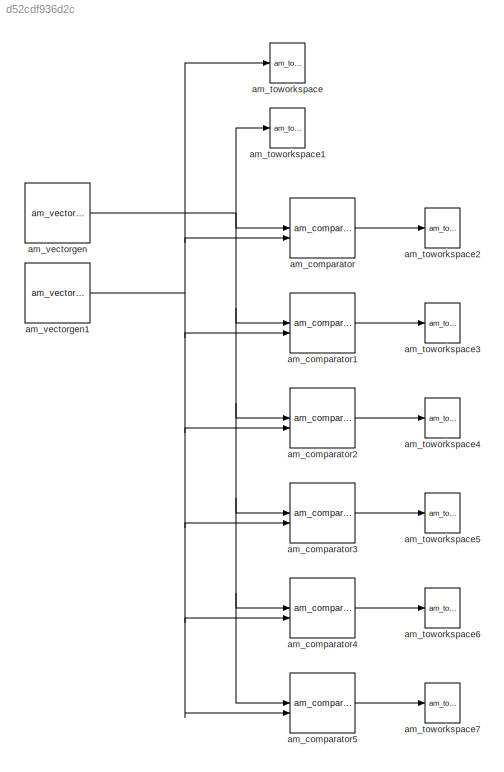
MODEL slx_d52cdf936d2c
KIND model
CONFIG AbsTol = auto
CONFIG EnableMultiTasking = off
CONFIG FixedStep = auto
CONFIG MaxStep = auto
CONFIG MinStep = auto
CONFIG RelTol = 1e-3
CONFIG SampleTimeConstraint = Unconstrained
CONFIG SolverName = VariableStepAuto
CONFIG StartTime = 0.0
CONFIG StopTime = 10.0
BLOCK [Reference] am_comparator  REF=NSA_DEVS_MATH_OPERATIONS/am_comparator
  SourceBlock = NSA_DEVS_MATH_OPERATIONS/am_comparator
  SourceProductName = Math Operations
  SourceType = Comparator
BLOCK [Reference] am_comparator1  REF=NSA_DEVS_MATH_OPERATIONS/am_comparator
  SourceBlock = NSA_DEVS_MATH_OPERATIONS/am_comparator
  SourceProductName = Math Operations
  SourceType = Comparator
BLOCK [Reference] am_comparator2  REF=NSA_DEVS_MATH_OPERATIONS/am_comparator
  SourceBlock = NSA_DEVS_MATH_OPERATIONS/am_comparator
  SourceProductName = Math Operations
  SourceType = Comparator
BLOCK [Reference] am_comparator3  REF=NSA_DEVS_MATH_OPERATIONS/am_comparator
  SourceBlock = NSA_DEVS_MATH_OPERATIONS/am_comparator
  SourceProductName = Math Operations
  SourceType = Comparator
BLOCK [Reference] am_comparator4  REF=NSA_DEVS_MATH_OPERATIONS/am_comparator
  SourceBlock = NSA_DEVS_MATH_OPERATIONS/am_comparator
  SourceProductName = Math Operations
  SourceType = Comparator
BLOCK [Reference] am_comparator5  REF=NSA_DEVS_MATH_OPERATIONS/am_comparator
  SourceBlock = NSA_DEVS_MATH_OPERATIONS/am_comparator
  SourceProductName = Math Operations
  SourceType = Comparator
BLOCK [Reference] am_toworkspace  REF=NSA_DEVS_SINKS/am_toworkspace
  SourceBlock = NSA_DEVS_SINKS/am_toworkspace
  SourceProductName = Sinks
  SourceType = ToWorkspace
BLOCK [Reference] am_toworkspace1  REF=NSA_DEVS_SINKS/am_toworkspace
  SourceBlock = NSA_DEVS_SINKS/am_toworkspace
  SourceProductName = Sinks
  SourceType = ToWorkspace
BLOCK [Reference] am_toworkspace2  REF=NSA_DEVS_SINKS/am_toworkspace
  SourceBlock = NSA_DEVS_SINKS/am_toworkspace
  SourceProductName = Sinks
  SourceType = ToWorkspace
BLOCK [Reference] am_toworkspace3  REF=NSA_DEVS_SINKS/am_toworkspace
  SourceBlock = NSA_DEVS_SINKS/am_toworkspace
  SourceProductName = Sinks
  SourceType = ToWorkspace
BLOCK [Reference] am_toworkspace4  REF=NSA_DEVS_SINKS/am_toworkspace
  SourceBlock = NSA_DEVS_SINKS/am_toworkspace
  SourceProductName = Sinks
  SourceType = ToWorkspace
BLOCK [Reference] am_toworkspace5  REF=NSA_DEVS_SINKS/am_toworkspace
  SourceBlock = NSA_DEVS_SINKS/am_toworkspace
  SourceProductName = Sinks
  SourceType = ToWorkspace
BLOCK [Reference] am_toworkspace6  REF=NSA_DEVS_SINKS/am_toworkspace
  SourceBlock = NSA_DEVS_SINKS/am_toworkspace
  SourceProductName = Sinks
  SourceType = ToWorkspace
BLOCK [Reference] am_toworkspace7  REF=NSA_DEVS_SINKS/am_toworkspace
  SourceBlock = NSA_DEVS_SINKS/am_toworkspace
  SourceProductName = Sinks
  SourceType = ToWorkspace
BLOCK [Reference] am_vectorgen  REF=NSA_DEVS_SOURCES/am_vectorgen
  SourceBlock = NSA_DEVS_SOURCES/am_vectorgen
  SourceProductName = Sources
  SourceType = Vectorgen
BLOCK [Reference] am_vectorgen1  REF=NSA_DEVS_SOURCES/am_vectorgen
  SourceBlock = NSA_DEVS_SOURCES/am_vectorgen
  SourceProductName = Sources
  SourceType = Vectorgen
LINE am_comparator1:1 -> am_toworkspace3:1
LINE am_comparator2:1 -> am_toworkspace4:1
LINE am_comparator3:1 -> am_toworkspace5:1
LINE am_comparator4:1 -> am_toworkspace6:1
LINE am_comparator5:1 -> am_toworkspace7:1
LINE am_comparator:1 -> am_toworkspace2:1
NET am_vectorgen1:1 -> am_comparator1:2, am_comparator2:2, am_comparator3:2, am_comparator4:2, am_comparator5:2, am_comparator:2, am_toworkspace:1
NET am_vectorgen:1 -> am_comparator1:1, am_comparator2:1, am_comparator3:1, am_comparator4:1, am_comparator5:1, am_comparator:1, am_toworkspace1:1
note: NET lines group one-source signal fan-out (src -> all destinations, sorted); 1:1 wires keep LINE
